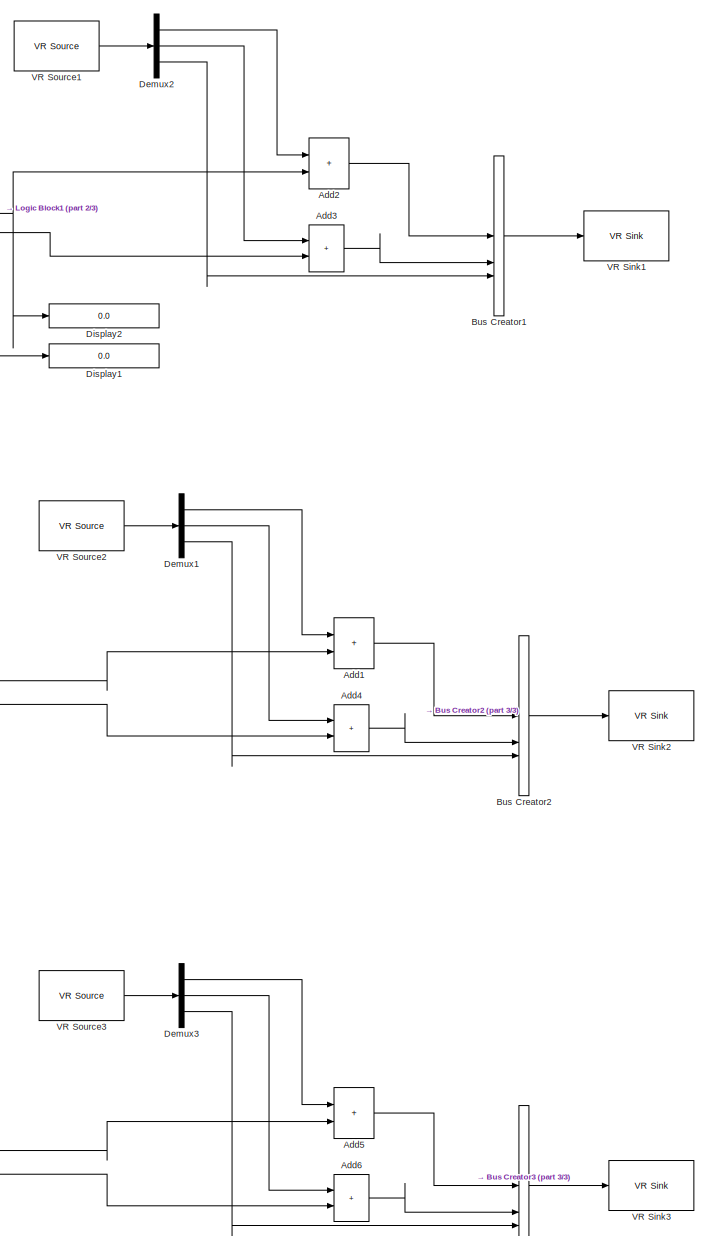
[diagram: root canvas - part 1/3, right side, full height]
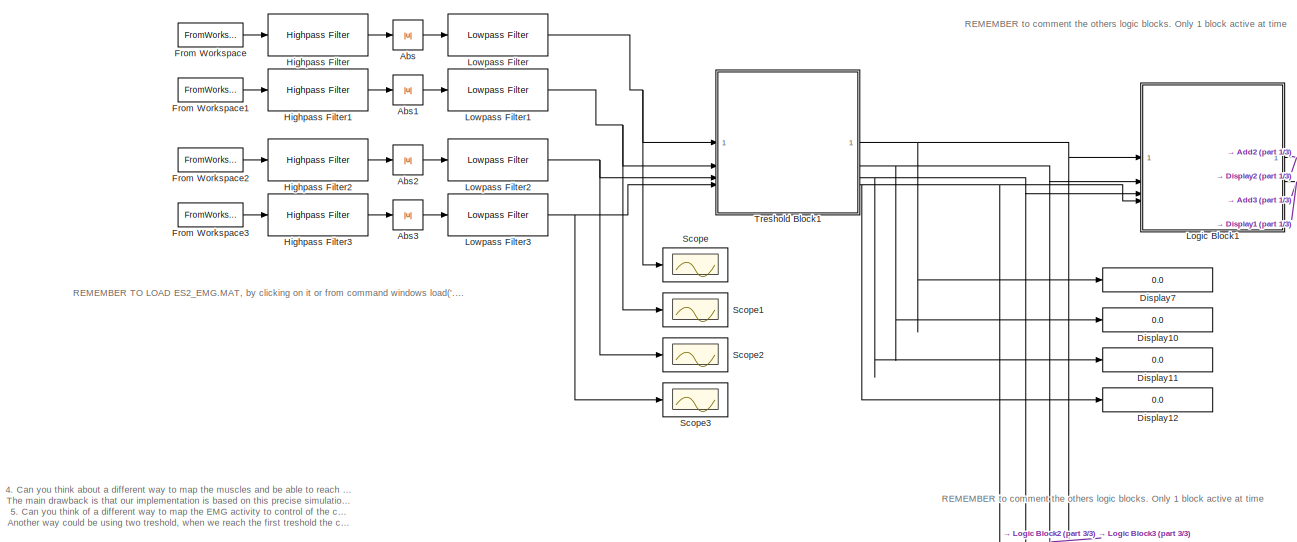
[diagram: root canvas - part 2/3, top left region]
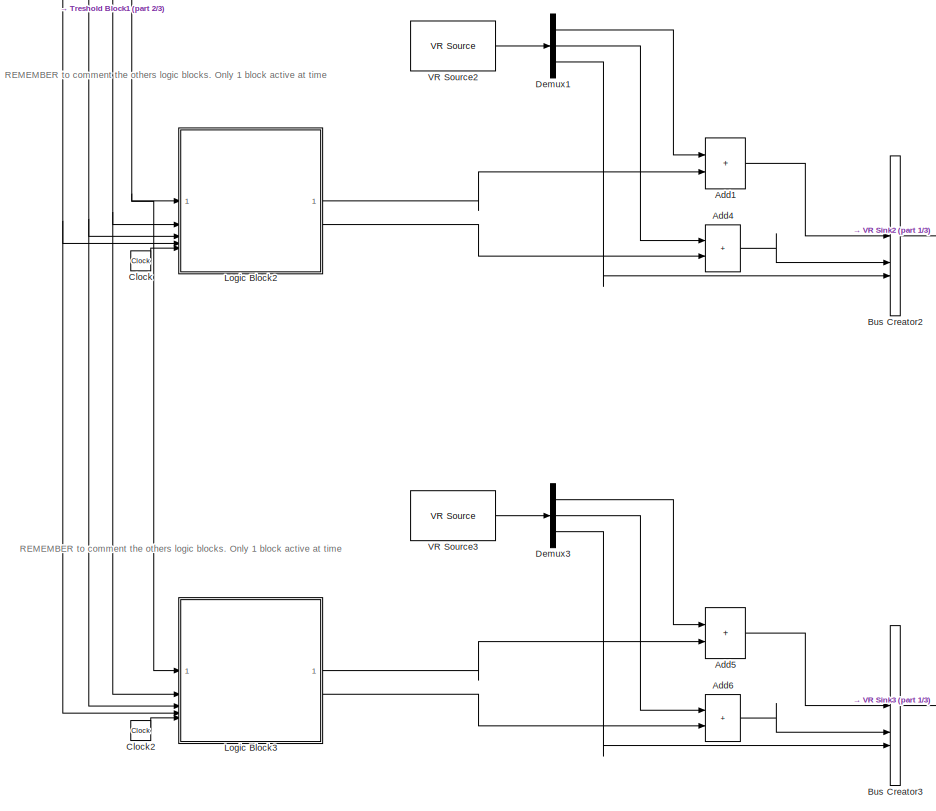
[diagram: root canvas - part 3/3, bottom right region]
MODEL slx_fe18965c355b
KIND model
CONFIG AbsTol = auto
CONFIG EnableMultiTasking = off
CONFIG FixedStep = auto
CONFIG MaxStep = auto
CONFIG MinStep = auto
CONFIG RelTol = 1e-3
CONFIG SampleTimeConstraint = Unconstrained
CONFIG SolverName = VariableStepAuto
CONFIG StartTime = 0.0
CONFIG StopTime = 30
BLOCK [Abs] Abs
  SaturateOnIntegerOverflow = off
BLOCK [Abs] Abs1
  SaturateOnIntegerOverflow = off
BLOCK [Abs] Abs2
  SaturateOnIntegerOverflow = off
BLOCK [Abs] Abs3
  SaturateOnIntegerOverflow = off
BLOCK [Sum] Add1
  IconShape = rectangular
BLOCK [Sum] Add2
  IconShape = rectangular
BLOCK [Sum] Add3
  IconShape = rectangular
BLOCK [Sum] Add4
  IconShape = rectangular
BLOCK [Sum] Add5
  IconShape = rectangular
BLOCK [Sum] Add6
  IconShape = rectangular
BLOCK [BusCreator] Bus Creator1
  DisplayOption = bar
  InheritFromInputs = on
  Inputs = 3
BLOCK [BusCreator] Bus Creator2
  DisplayOption = bar
  InheritFromInputs = on
  Inputs = 3
BLOCK [BusCreator] Bus Creator3
  DisplayOption = bar
  InheritFromInputs = on
  Inputs = 3
BLOCK [Clock] Clock
BLOCK [Clock] Clock2
BLOCK [Demux] Demux1
  Outputs = 3
BLOCK [Demux] Demux2
  Outputs = 3
BLOCK [Demux] Demux3
  Outputs = 3
BLOCK [Display] Display1
  Decimation = 1
BLOCK [Display] Display10
  Decimation = 1
BLOCK [Display] Display11
  Decimation = 1
BLOCK [Display] Display12
  Decimation = 1
BLOCK [Display] Display2
  Decimation = 1
BLOCK [Display] Display7
  Decimation = 1
BLOCK [FromWorkspace] From Workspace
  SampleTime = 0.001
  VariableName = [ES2_emg.time, ES2_emg.signals(:,1)]
BLOCK [FromWorkspace] From Workspace1
  SampleTime = 0.001
  VariableName = [ES2_emg.time, ES2_emg.signals(:,2)]
BLOCK [FromWorkspace] From Workspace2
  SampleTime = 0.001
  VariableName = [ES2_emg.time, ES2_emg.signals(:,3)]
BLOCK [FromWorkspace] From Workspace3
  SampleTime = 0.001
  VariableName = [ES2_emg.time, ES2_emg.signals(:,4)]
BLOCK [Reference] Highpass Filter  REF=dspfdesign/Highpass Filter
  SourceBlock = dspfdesign/Highpass Filter
  SourceType = dsp.simulink.HighpassFilter
BLOCK [Reference] Highpass Filter1  REF=dspfdesign/Highpass Filter
  SourceBlock = dspfdesign/Highpass Filter
  SourceType = dsp.simulink.HighpassFilter
BLOCK [Reference] Highpass Filter2  REF=dspfdesign/Highpass Filter
  SourceBlock = dspfdesign/Highpass Filter
  SourceType = dsp.simulink.HighpassFilter
BLOCK [Reference] Highpass Filter3  REF=dspfdesign/Highpass Filter
  SourceBlock = dspfdesign/Highpass Filter
  SourceType = dsp.simulink.HighpassFilter
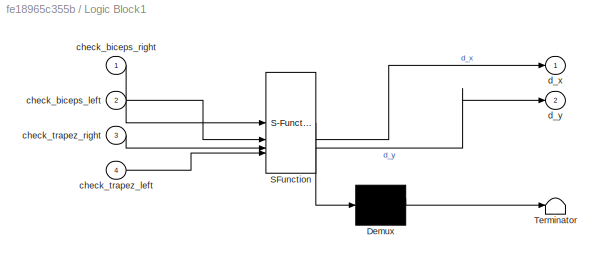
BLOCK [SubSystem] Logic Block1
  ErrorFcn = Stateflow.Translate.translate
  PermitHierarchicalResolution = ExplicitOnly
  SFBlockType = MATLAB Function
  SystemSampleTime = 0.1
  TreatAsAtomicUnit = on
BLOCK [Demux] Logic Block1/ Demux 
  Outputs = 1
BLOCK [S-Function] Logic Block1/ SFunction 
  EnableBusSupport = on
  FunctionName = sf_sfun
  PortCounts = [4 3]
  SFcnIsStateOwnerBlock = off
  SFunctionDeploymentMode = off
  Tag = Stateflow S-Function 6
BLOCK [Terminator] Logic Block1/ Terminator 
BLOCK [Inport] Logic Block1/check_biceps_left
  Port = 2
BLOCK [Inport] Logic Block1/check_biceps_right
BLOCK [Inport] Logic Block1/check_trapez_left
  Port = 4
BLOCK [Inport] Logic Block1/check_trapez_right
  Port = 3
BLOCK [Outport] Logic Block1/d_x
BLOCK [Outport] Logic Block1/d_y
  Port = 2
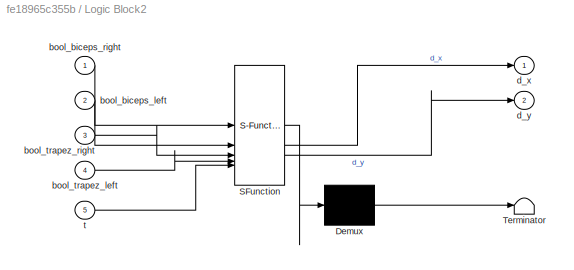
BLOCK [SubSystem] Logic Block2
  Commented = on
  ErrorFcn = Stateflow.Translate.translate
  PermitHierarchicalResolution = ExplicitOnly
  SFBlockType = MATLAB Function
  SystemSampleTime = 0.1
  TreatAsAtomicUnit = on
BLOCK [Demux] Logic Block2/ Demux 
  Outputs = 1
BLOCK [S-Function] Logic Block2/ SFunction 
  EnableBusSupport = on
  FunctionName = sf_sfun
  PortCounts = [5 3]
  SFcnIsStateOwnerBlock = off
  SFunctionDeploymentMode = off
  Tag = Stateflow S-Function 1
BLOCK [Terminator] Logic Block2/ Terminator 
BLOCK [Inport] Logic Block2/bool_biceps_left
  Port = 2
BLOCK [Inport] Logic Block2/bool_biceps_right
BLOCK [Inport] Logic Block2/bool_trapez_left
  Port = 4
BLOCK [Inport] Logic Block2/bool_trapez_right
  Port = 3
BLOCK [Outport] Logic Block2/d_x
BLOCK [Outport] Logic Block2/d_y
  Port = 2
BLOCK [Inport] Logic Block2/t
  Port = 5
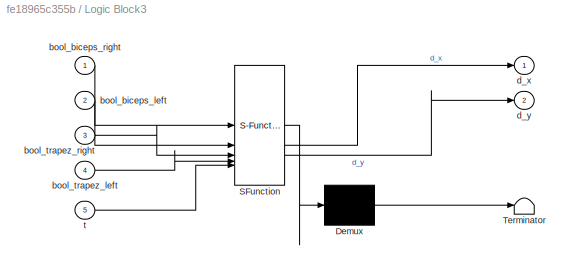
BLOCK [SubSystem] Logic Block3
  Commented = on
  ErrorFcn = Stateflow.Translate.translate
  PermitHierarchicalResolution = ExplicitOnly
  SFBlockType = MATLAB Function
  SystemSampleTime = 0.1
  TreatAsAtomicUnit = on
BLOCK [Demux] Logic Block3/ Demux 
  Outputs = 1
BLOCK [S-Function] Logic Block3/ SFunction 
  EnableBusSupport = on
  FunctionName = sf_sfun
  PortCounts = [5 3]
  SFcnIsStateOwnerBlock = off
  SFunctionDeploymentMode = off
  Tag = Stateflow S-Function 2
BLOCK [Terminator] Logic Block3/ Terminator 
BLOCK [Inport] Logic Block3/bool_biceps_left
  Port = 2
BLOCK [Inport] Logic Block3/bool_biceps_right
BLOCK [Inport] Logic Block3/bool_trapez_left
  Port = 4
BLOCK [Inport] Logic Block3/bool_trapez_right
  Port = 3
BLOCK [Outport] Logic Block3/d_x
BLOCK [Outport] Logic Block3/d_y
  Port = 2
BLOCK [Inport] Logic Block3/t
  Port = 5
BLOCK [Reference] Lowpass Filter  REF=dspfdesign/Lowpass Filter
  SourceBlock = dspfdesign/Lowpass Filter
  SourceType = dsp.simulink.LowpassFilter
BLOCK [Reference] Lowpass Filter1  REF=dspfdesign/Lowpass Filter
  SourceBlock = dspfdesign/Lowpass Filter
  SourceType = dsp.simulink.LowpassFilter
BLOCK [Reference] Lowpass Filter2  REF=dspfdesign/Lowpass Filter
  SourceBlock = dspfdesign/Lowpass Filter
  SourceType = dsp.simulink.LowpassFilter
BLOCK [Reference] Lowpass Filter3  REF=dspfdesign/Lowpass Filter
  SourceBlock = dspfdesign/Lowpass Filter
  SourceType = dsp.simulink.LowpassFilter
BLOCK [Scope] Scope
  Floating = off
  NumInputPorts = 1
  ScopeSpecificationString = Simulink.scopes.TimeScopeBlockCfg('CurrentConfiguration', extmgr.ConfigurationSet(extmgr.Configuration('Core','General UI',true),extmgr.Configuration('Core','Source UI',true),extmgr.Configuration('Sources','WiredSimulink',true),extmgr.Configuration('Visuals','Time Domain',true,'SerializedDisplays',{struct('MinYLimReal','-0.00287','MaxYLimReal','0.02478','YLabelReal','','MinYLimMag','0.00000','MaxY...<+1419ch>
BLOCK [Scope] Scope1
  Floating = off
  NumInputPorts = 1
  ScopeSpecificationString = Simulink.scopes.TimeScopeBlockCfg('CurrentConfiguration', extmgr.ConfigurationSet(extmgr.Configuration('Core','General UI',true),extmgr.Configuration('Core','Source UI',true),extmgr.Configuration('Sources','WiredSimulink',true,'DataLoggingVariableName','ScopeData1'),extmgr.Configuration('Visuals','Time Domain',true,'SerializedDisplays',{struct('MinYLimReal','-0.00341','MaxYLimReal','0.0304','YLabe...<+1457ch>
BLOCK [Scope] Scope2
  Floating = off
  NumInputPorts = 1
  ScopeSpecificationString = Simulink.scopes.TimeScopeBlockCfg('CurrentConfiguration', extmgr.ConfigurationSet(extmgr.Configuration('Core','General UI',true),extmgr.Configuration('Core','Source UI',true),extmgr.Configuration('Sources','WiredSimulink',true,'DataLoggingVariableName','ScopeData2'),extmgr.Configuration('Visuals','Time Domain',true,'SerializedDisplays',{struct('MinYLimReal','-0.00219','MaxYLimReal','0.01948','YLab...<+1460ch>
BLOCK [Scope] Scope3
  Floating = off
  NumInputPorts = 1
  ScopeSpecificationString = Simulink.scopes.TimeScopeBlockCfg('CurrentConfiguration', extmgr.ConfigurationSet(extmgr.Configuration('Core','General UI',true),extmgr.Configuration('Core','Source UI',true),extmgr.Configuration('Sources','WiredSimulink',true,'DataLoggingVariableName','ScopeData3'),extmgr.Configuration('Visuals','Time Domain',true,'SerializedDisplays',{struct('MinYLimReal','-0.00122','MaxYLimReal','0.01049','YLab...<+1461ch>
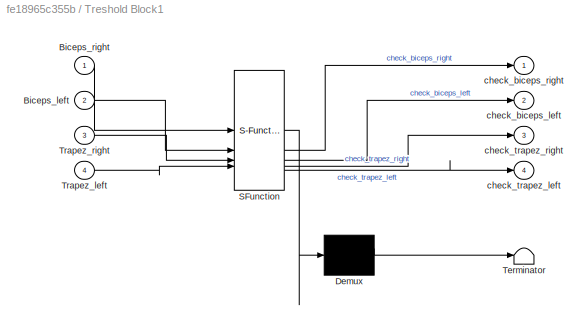
BLOCK [SubSystem] Treshold Block1
  ErrorFcn = Stateflow.Translate.translate
  PermitHierarchicalResolution = ExplicitOnly
  SFBlockType = MATLAB Function
  SystemSampleTime = 0.1
  TreatAsAtomicUnit = on
BLOCK [Demux] Treshold Block1/ Demux 
  Outputs = 1
BLOCK [S-Function] Treshold Block1/ SFunction 
  EnableBusSupport = on
  FunctionName = sf_sfun
  PortCounts = [4 5]
  SFcnIsStateOwnerBlock = off
  SFunctionDeploymentMode = off
  Tag = Stateflow S-Function 5
BLOCK [Terminator] Treshold Block1/ Terminator 
BLOCK [Inport] Treshold Block1/Biceps_left
  Port = 2
BLOCK [Inport] Treshold Block1/Biceps_right
BLOCK [Inport] Treshold Block1/Trapez_left
  Port = 4
BLOCK [Inport] Treshold Block1/Trapez_right
  Port = 3
BLOCK [Outport] Treshold Block1/check_biceps_left
  Port = 2
BLOCK [Outport] Treshold Block1/check_biceps_right
BLOCK [Outport] Treshold Block1/check_trapez_left
  Port = 4
BLOCK [Outport] Treshold Block1/check_trapez_right
  Port = 3
BLOCK [Reference] VR Sink1  REF=vrlib/VR Sink
  InstantiateOnLoad = on
  SourceBlock = vrlib/VR Sink
  SourceType = Virtual Reality Sink
BLOCK [Reference] VR Sink2  REF=vrlib/VR Sink
  InstantiateOnLoad = on
  SourceBlock = vrlib/VR Sink
  SourceType = Virtual Reality Sink
BLOCK [Reference] VR Sink3  REF=vrlib/VR Sink
  InstantiateOnLoad = on
  SourceBlock = vrlib/VR Sink
  SourceType = Virtual Reality Sink
BLOCK [Reference] VR Source1  REF=vrlib/VR Source
  InstantiateOnLoad = on
  SourceBlock = vrlib/VR Source
  SourceType = Virtual Reality Source
BLOCK [Reference] VR Source2  REF=vrlib/VR Source
  InstantiateOnLoad = on
  SourceBlock = vrlib/VR Source
  SourceType = Virtual Reality Source
BLOCK [Reference] VR Source3  REF=vrlib/VR Source
  InstantiateOnLoad = on
  SourceBlock = vrlib/VR Source
  SourceType = Virtual Reality Source
ANNOTATION (root): REMEMBER TO LOAD ES2_EMG.MAT, by clicking on it or from command windows load('...')
ANNOTATION (root): REMEMBER to comment the others logic blocks. Only 1 block active at time
ANNOTATION (root): 4. Can you think about a different way to map the muscles and be able to reach all 8 targets with the activation of these muscles? Explore an alternative mapping approach between muscles and cursor movement that enables reaching all 8 targets. Identify any potential drawbacks associated with this alternative mapping method. The main drawback is that our implementation is based on this precise simu...<+672ch>
LINE Abs1:1 -> Lowpass Filter1:1
LINE Abs2:1 -> Lowpass Filter2:1
LINE Abs3:1 -> Lowpass Filter3:1
LINE Abs:1 -> Lowpass Filter:1
LINE Add1:1 -> Bus Creator2:1
LINE Add2:1 -> Bus Creator1:1
LINE Add3:1 -> Bus Creator1:2
LINE Add4:1 -> Bus Creator2:2
LINE Add5:1 -> Bus Creator3:1
LINE Add6:1 -> Bus Creator3:2
LINE Bus Creator1:1 -> VR Sink1:1
LINE Bus Creator2:1 -> VR Sink2:1
LINE Bus Creator3:1 -> VR Sink3:1
LINE Clock2:1 -> Logic Block3:5
LINE Clock:1 -> Logic Block2:5
LINE Demux1:1 -> Add1:1
LINE Demux1:2 -> Add4:1
LINE Demux1:3 -> Bus Creator2:3
LINE Demux2:1 -> Add2:1
LINE Demux2:2 -> Add3:1
LINE Demux2:3 -> Bus Creator1:3
LINE Demux3:1 -> Add5:1
LINE Demux3:2 -> Add6:1
LINE Demux3:3 -> Bus Creator3:3
LINE From Workspace1:1 -> Highpass Filter1:1
LINE From Workspace2:1 -> Highpass Filter2:1
LINE From Workspace3:1 -> Highpass Filter3:1
LINE From Workspace:1 -> Highpass Filter:1
LINE Highpass Filter1:1 -> Abs1:1
LINE Highpass Filter2:1 -> Abs2:1
LINE Highpass Filter3:1 -> Abs3:1
LINE Highpass Filter:1 -> Abs:1
NET Logic Block1:1 -> Add2:2, Display2:1
NET Logic Block1:2 -> Add3:2, Display1:1
LINE Logic Block2:1 -> Add1:2
LINE Logic Block2:2 -> Add4:2
LINE Logic Block3:1 -> Add5:2
LINE Logic Block3:2 -> Add6:2
NET Lowpass Filter1:1 -> Scope1:1, Treshold Block1:2
NET Lowpass Filter2:1 -> Scope2:1, Treshold Block1:3
NET Lowpass Filter3:1 -> Scope3:1, Treshold Block1:4
NET Lowpass Filter:1 -> Scope:1, Treshold Block1:1
NET Treshold Block1:1 -> Display7:1, Logic Block1:1, Logic Block2:1, Logic Block3:1
NET Treshold Block1:2 -> Display10:1, Logic Block1:2, Logic Block2:2, Logic Block3:2
NET Treshold Block1:3 -> Display11:1, Logic Block1:3, Logic Block2:3, Logic Block3:3
NET Treshold Block1:4 -> Display12:1, Logic Block1:4, Logic Block2:4, Logic Block3:4
LINE VR Source1:1 -> Demux2:1
LINE VR Source2:1 -> Demux1:1
LINE VR Source3:1 -> Demux3:1
note: NET lines group one-source signal fan-out (src -> all destinations, sorted); 1:1 wires keep LINE
CHART Logic Block2 states=1 transitions=1
  STATE_LABEL 'eML_blk_kernel()'
  STATE_LABEL 'SCRIPT:\n\nfunction [d_x, d_y] = fcn(bool_biceps_right,bool_biceps_left, bool_trapez_right, bool_trapez_left, t)\n\nd_x = 0;\nd_y = 0;\n\nif t<15\n\n    if (bool_biceps_right == 1)\n    \n        d_x = 0.0035;\n        d_y = - 0.0035;\n    end\n    \n    if (bool_biceps_left == 1)\n    \n        d_x = -0.002;\n        d_y = 0.002;\n    end\n    \n    if (bool_trapez_right == 1)\n        \n        d_x = 0.0145;\n        d...<+520ch>'
CHART Logic Block3 states=1 transitions=1
  STATE_LABEL 'eML_blk_kernel()'
  STATE_LABEL 'SCRIPT:\n\nfunction [d_x, d_y] = fcn(bool_biceps_right,bool_biceps_left, bool_trapez_right, bool_trapez_left, t)\n\nd_x = 0;\nd_y = 0;\n\n\nif t<4\n\n    \n    if (bool_trapez_right == 1)\n    \n        d_x = 0.02;\n    end\n    \n    \nend\n\n\nif t>4 && t<15\n\n     if (bool_trapez_left == 1)\n        \n        d_x = - 0.006;\n        d_y = 0.015;\n     end\n\n    if (bool_biceps_right == 1)\n    \n        d_x = -0.0035;\n   ...<+541ch>'
CHART Treshold Block1 states=1 transitions=1
  STATE_LABEL 'eML_blk_kernel()'
  STATE_LABEL 'SCRIPT:\nfunction [check_biceps_right, check_biceps_left, check_trapez_right, check_trapez_left] = fcn(Biceps_right, Biceps_left, Trapez_right, Trapez_left)\n\n    check_biceps_right = 0;\n    check_biceps_left = 0;\n    check_trapez_right = 0;\n    check_trapez_left = 0;\n\n    persistent prev_Biceps_right prev_Biceps_left prev_Trapez_right prev_Trapez_left;\n\n    if isempty(prev_Biceps_right) || isempty(...<+1286ch>'
CHART Logic Block1 states=1 transitions=1
  STATE_LABEL 'eML_blk_kernel()'
  STATE_LABEL 'SCRIPT:\n\nfunction [d_x, d_y] = fcn(check_biceps_right,check_biceps_left, check_trapez_right, check_trapez_left)\n\nd_x = 0;\nd_y = 0;\n\nif (check_biceps_right == 1)\n    \n    d_x = 0.005;\n\nelseif (check_biceps_right == -1)\n\n    d_x = -0.005;\n\nend\n    \nif (check_biceps_left == 1)    \n    \n    d_x = -0.0056;    \n\nelseif (check_biceps_left == -1)    \n    \n    d_x = 0.0056;\n\nend    \n    \nif (check_trapez_r...<+234ch>'
CHART  states=0 transitions=0
CHART  states=0 transitions=0
CHART  states=0 transitions=0
CHART  states=0 transitions=0
